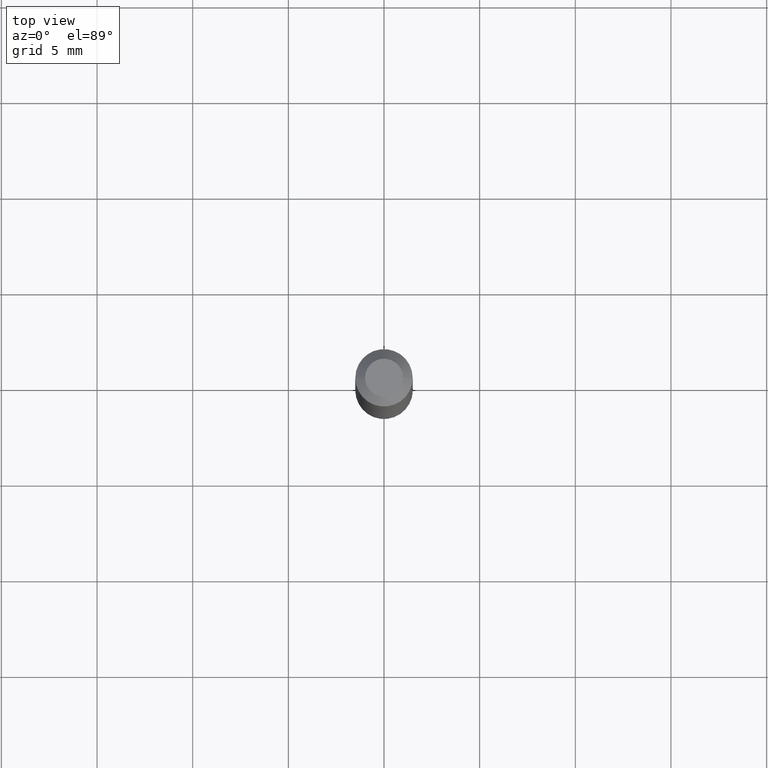
[diagram: clean part render]
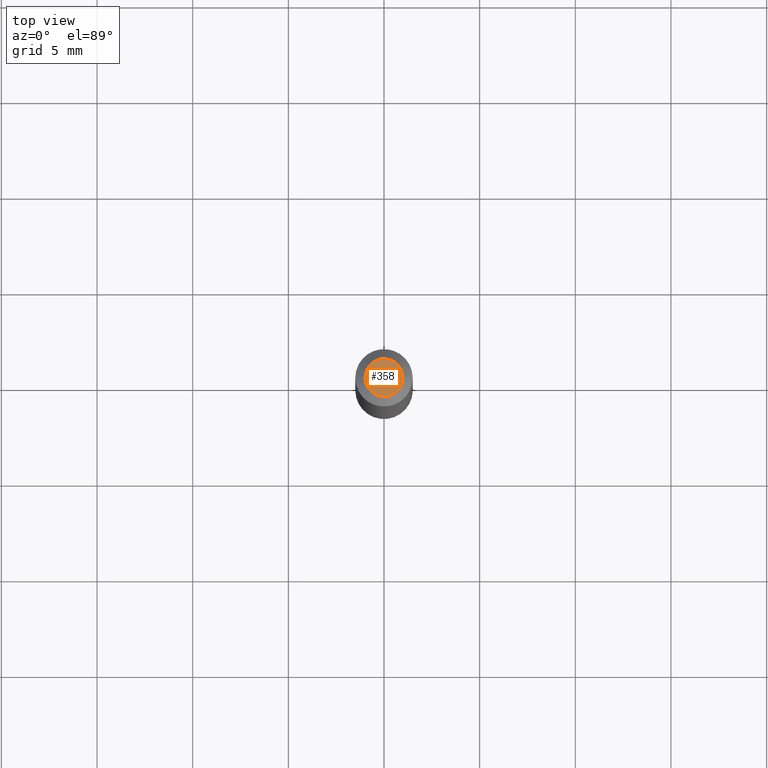
[diagram: same view with one face highlighted and labeled with its STEP entity id]
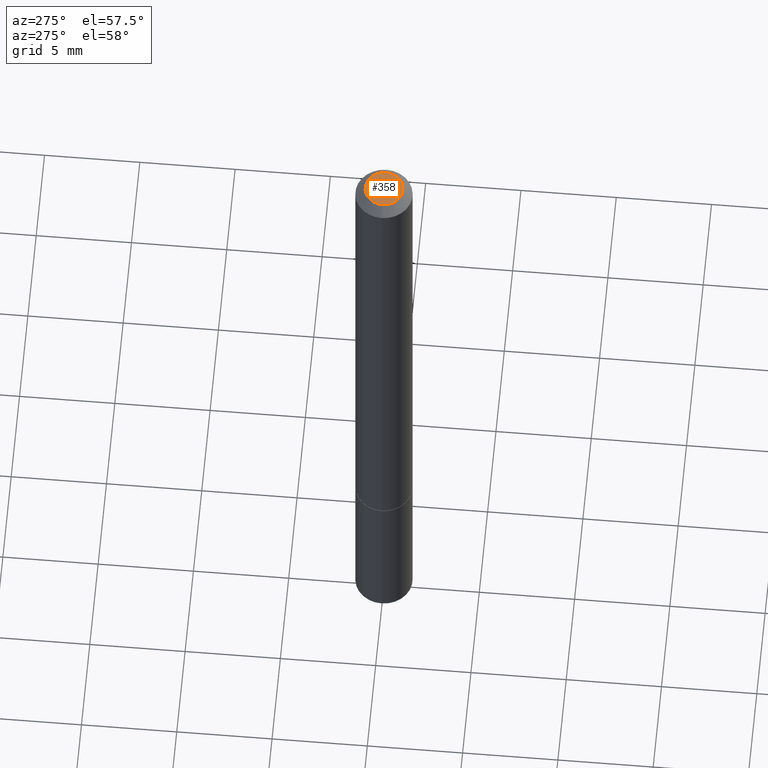
[diagram: same view with one face highlighted and labeled with its STEP entity id]
A machine part, top view. The second image highlights one B-rep face of the part: STEP entity #358.
A second angle (auxiliary view) of the same face is appended — the face is thin or edge-on in the first view.
In plain terms, the highlighted planar face has unit normal (0, -0, -1).
Its self-contained STEP definition (entity closure, byte-faithful):
#5 = EDGE_CURVE ( 'NONE', #354, #294, #287, .T. ) ;
#66 = DIRECTION ( 'NONE',  ( -1.000000000000000000, 6.982962677686265922E-15, -4.876176775795935793E-29 ) ) ;
#78 = ORIENTED_EDGE ( 'NONE', *, *, #196, .T. ) ;
#80 = DIRECTION ( 'NONE',  ( 2.438088387897960049E-29, -3.491481338843145188E-15, -1.000000000000000000 ) ) ;
#88 = CARTESIAN_POINT ( 'NONE',  ( 0.03904999999999995974, -3.714222401791248901E-16, -4.268512490100186330E-17 ) ) ;
#90 = DIRECTION ( 'NONE',  ( -2.445468806185136597E-29, 3.491481338843145583E-15, 1.000000000000000000 ) ) ;
#93 = DIRECTION ( 'NONE',  ( 1.000000000000000000, -6.982962677686266711E-15, 4.873707401586867728E-29 ) ) ;
#98 = EDGE_LOOP ( 'NONE', ( #109, #78 ) ) ;
#107 = CARTESIAN_POINT ( 'NONE',  ( 1.043851414335219781E-45, -1.490343170380447145E-31, -4.268512490100411279E-17 ) ) ;
#109 = ORIENTED_EDGE ( 'NONE', *, *, #5, .T. ) ;
#140 = PLANE ( 'NONE',  #190 ) ;
#143 = AXIS2_PLACEMENT_3D ( 'NONE', #107, #90, #339 ) ;
#190 = AXIS2_PLACEMENT_3D ( 'NONE', #289, #80, #66 ) ;
#196 = EDGE_CURVE ( 'NONE', #294, #354, #302, .T. ) ;
#206 = DIRECTION ( 'NONE',  ( -2.445468806185136597E-29, 3.491481338843145583E-15, 1.000000000000000000 ) ) ;
#234 = CARTESIAN_POINT ( 'NONE',  ( -0.03904999999999995974, 3.075995059520794305E-16, -4.268512490100614657E-17 ) ) ;
#287 = CIRCLE ( 'NONE', #143, 0.03904999999999995974 ) ;
#289 = CARTESIAN_POINT ( 'NONE',  ( 2.726846925636483731E-16, 0.03904999999999995974, -1.576849087323267144E-16 ) ) ;
#294 = VERTEX_POINT ( 'NONE', #88 ) ;
#302 = CIRCLE ( 'NONE', #351, 0.03904999999999995974 ) ;
#307 = FACE_OUTER_BOUND ( 'NONE', #98, .T. ) ;
#319 = CARTESIAN_POINT ( 'NONE',  ( 1.043851414335219781E-45, -1.490343170380447145E-31, -4.268512490100411279E-17 ) ) ;
#339 = DIRECTION ( 'NONE',  ( 1.000000000000000000, -6.982962677686266711E-15, 4.873707401586867728E-29 ) ) ;
#351 = AXIS2_PLACEMENT_3D ( 'NONE', #319, #206, #93 ) ;
#354 = VERTEX_POINT ( 'NONE', #234 ) ;
#358 = ADVANCED_FACE ( 'NONE', ( #307 ), #140, .F. ) ;